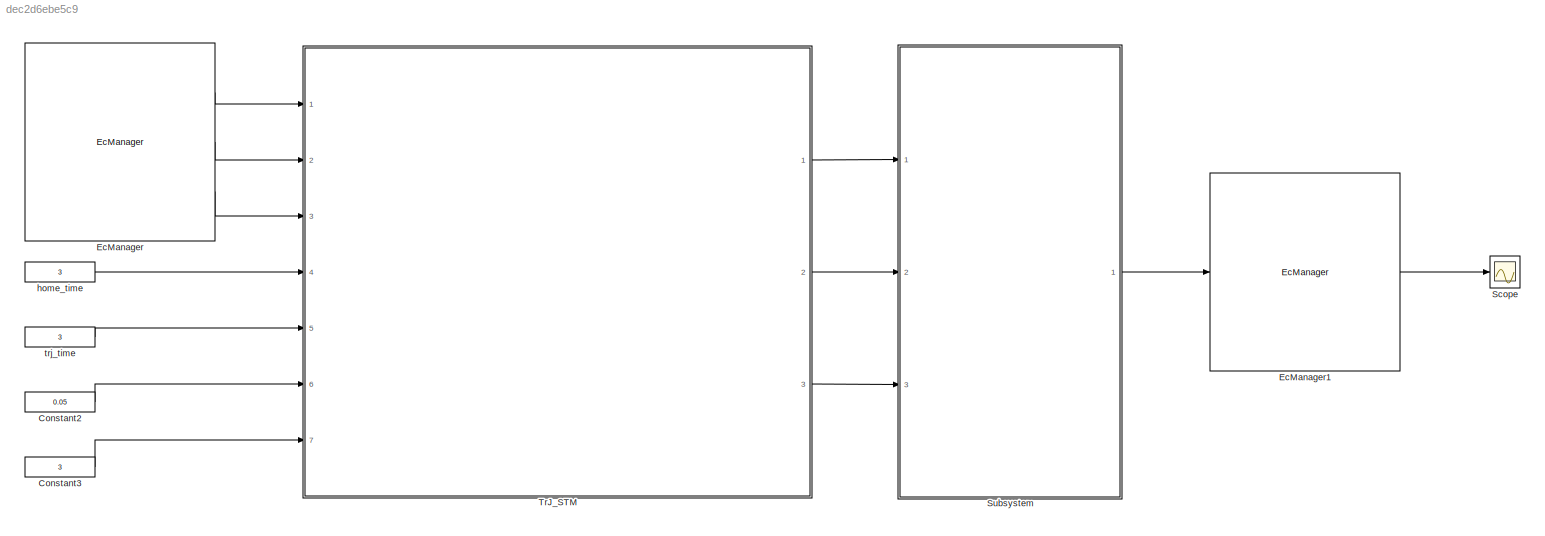
MODEL slx_dec2d6ebe5c9
KIND model
CONFIG AbsTol = auto
CONFIG EnableMultiTasking = off
CONFIG FixedStep = 0.05
CONFIG MaxStep = auto
CONFIG MinStep = auto
CONFIG RelTol = 1e-3
CONFIG SampleTimeConstraint = Unconstrained
CONFIG SolverName = ode3
CONFIG StartTime = 0.0
CONFIG StopTime = inf
BLOCK [Constant] Constant2
  Value = 0.05
BLOCK [Constant] Constant3
  Value = 3
BLOCK [Reference] EcManager  REF=EcBlockToolbox/EcManager
  Ports = [0, 3]
  SourceBlock = EcBlockToolbox/EcManager
  SourceProductName = EcBlock Toolbox
BLOCK [Reference] EcManager1  REF=EcBlockToolbox/EcManager
  Ports = [1, 1]
  SourceBlock = EcBlockToolbox/EcManager
  SourceProductName = EcBlock Toolbox
BLOCK [Scope] Scope
  Floating = off
  NumInputPorts = 1
  Ports = [1]
  ScopeSpecificationString = Simulink.scopes.TimeScopeBlockCfg('CurrentConfiguration', extmgr.ConfigurationSet(extmgr.Configuration('Core','General UI',true),extmgr.Configuration('Core','Source UI',true),extmgr.Configuration('Sources','WiredSimulink',true),extmgr.Configuration('Visuals','Time Domain',true,'SerializedDisplays',{struct('MinYLimReal','-2.71258','MaxYLimReal','1.41258','YLabelReal','','MinYLimMag','0.00000','MaxY...<+1668ch>
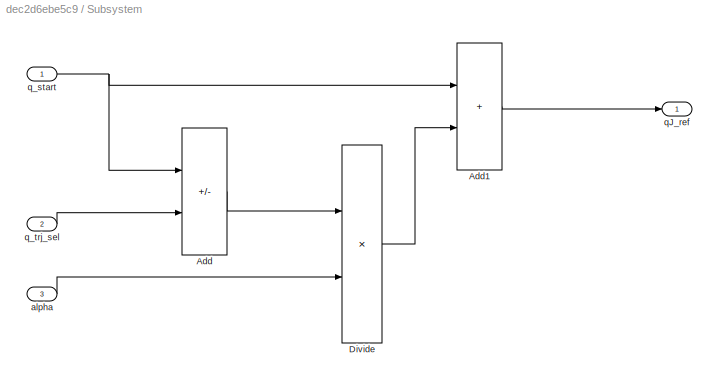
BLOCK [SubSystem] Subsystem
  Ports = [3, 1]
  RequestExecContextInheritance = off
BLOCK [Sum] Subsystem/Add
  IconShape = rectangular
  Inputs = -+
  Ports = [2, 1]
BLOCK [Sum] Subsystem/Add1
  IconShape = rectangular
  Ports = [2, 1]
BLOCK [Product] Subsystem/Divide
  Inputs = **
  Ports = [2, 1]
BLOCK [Inport] Subsystem/alpha
  Port = 3
BLOCK [Outport] Subsystem/qJ_ref
BLOCK [Inport] Subsystem/q_start
BLOCK [Inport] Subsystem/q_trj_sel
  Port = 2
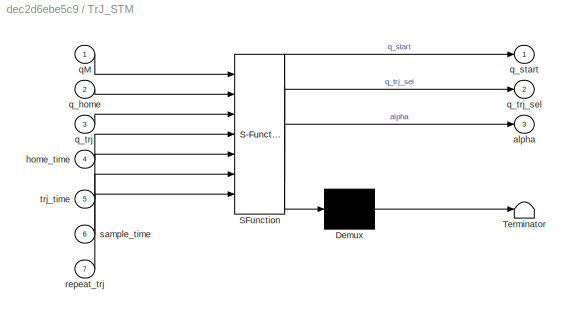
BLOCK [SubSystem] TrJ_STM
  ErrorFcn = Stateflow.Translate.translate
  PermitHierarchicalResolution = ExplicitOnly
  Ports = [7, 3]
  RequestExecContextInheritance = off
  SFBlockType = Chart
  TreatAsAtomicUnit = on
BLOCK [Demux] TrJ_STM/ Demux 
  Outputs = 1
  Ports = [1, 1]
BLOCK [S-Function] TrJ_STM/ SFunction 
  EnableBusSupport = on
  FunctionName = sf_sfun
  PortCounts = [7 4]
  Ports = [7, 4]
  SFcnIsStateOwnerBlock = off
  SFunctionDeploymentMode = off
  Tag = Stateflow S-Function 3
BLOCK [Terminator] TrJ_STM/ Terminator 
BLOCK [Outport] TrJ_STM/alpha
  Port = 3
BLOCK [Inport] TrJ_STM/home_time
  Port = 4
BLOCK [Inport] TrJ_STM/qM
BLOCK [Inport] TrJ_STM/q_home
  Port = 2
BLOCK [Outport] TrJ_STM/q_start
BLOCK [Inport] TrJ_STM/q_trj
  Port = 3
BLOCK [Outport] TrJ_STM/q_trj_sel
  Port = 2
BLOCK [Inport] TrJ_STM/repeat_trj
  Port = 7
BLOCK [Inport] TrJ_STM/sample_time
  Port = 6
BLOCK [Inport] TrJ_STM/trj_time
  Port = 5
BLOCK [Constant] home_time
  Value = 3
BLOCK [Constant] trj_time
  Value = 3
LINE Constant2:1 -> TrJ_STM:6
LINE Constant3:1 -> TrJ_STM:7
LINE EcManager1:1 -> Scope:1
LINE EcManager:1 -> TrJ_STM:1
LINE EcManager:2 -> TrJ_STM:2
LINE EcManager:3 -> TrJ_STM:3
LINE Subsystem/Add1:1 -> Subsystem/qJ_ref:1
LINE Subsystem/Add:1 -> Subsystem/Divide:1
LINE Subsystem/Divide:1 -> Subsystem/Add1:2
LINE Subsystem/alpha:1 -> Subsystem/Divide:2
NET Subsystem/q_start:1 -> Subsystem/Add1:1, Subsystem/Add:1
LINE Subsystem/q_trj_sel:1 -> Subsystem/Add:2
LINE Subsystem:1 -> EcManager1:1
LINE TrJ_STM:1 -> Subsystem:1
LINE TrJ_STM:2 -> Subsystem:2
LINE TrJ_STM:3 -> Subsystem:3
LINE home_time:1 -> TrJ_STM:4
LINE trj_time:1 -> TrJ_STM:5
note: NET lines group one-source signal fan-out (src -> all destinations, sorted); 1:1 wires keep LINE
CHART TrJ_STM states=3 transitions=4
  STATE_LABEL 'Homing\n\nen: q_trj_sel = q_home; time=0;alpha=0;\ndu: time=time + sample_time;\n tau=time/home_time;\n alpha = ((6*tau - 15)*tau + 10)*tau*tau*tau;'
  STATE_LABEL 'Stop\n\nen: alpha=0;'
  STATE_LABEL 'Trajectory\n\nen: q_trj_sel = q_trj; time=0;alpha=0;\ndu: time=time + sample_time;\n tau=time/home_time;\n alpha = ((6*tau - 15)*tau + 10)*tau*tau*tau;\n'
CHART  states=0 transitions=0
